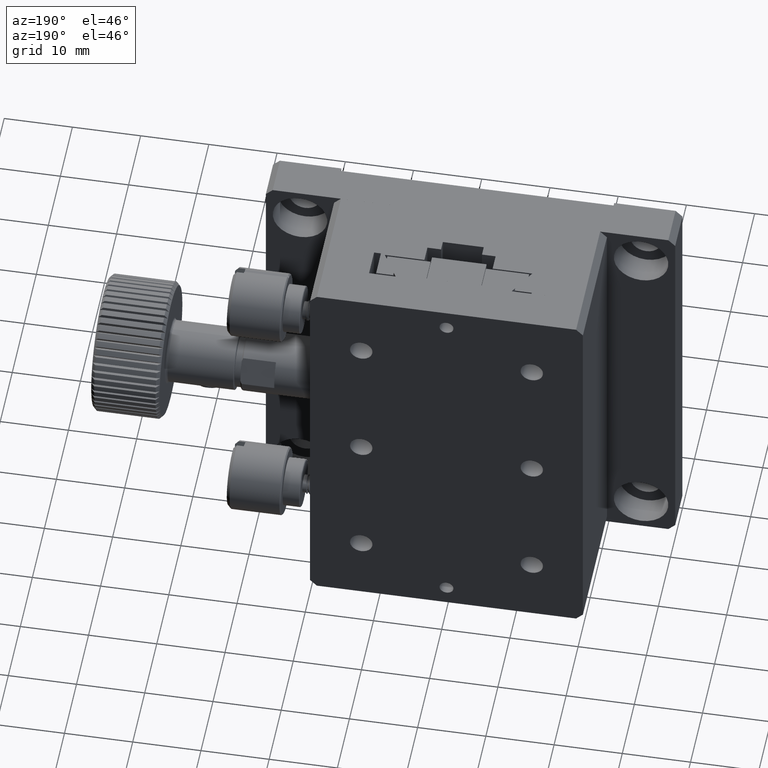
[diagram: clean part render]
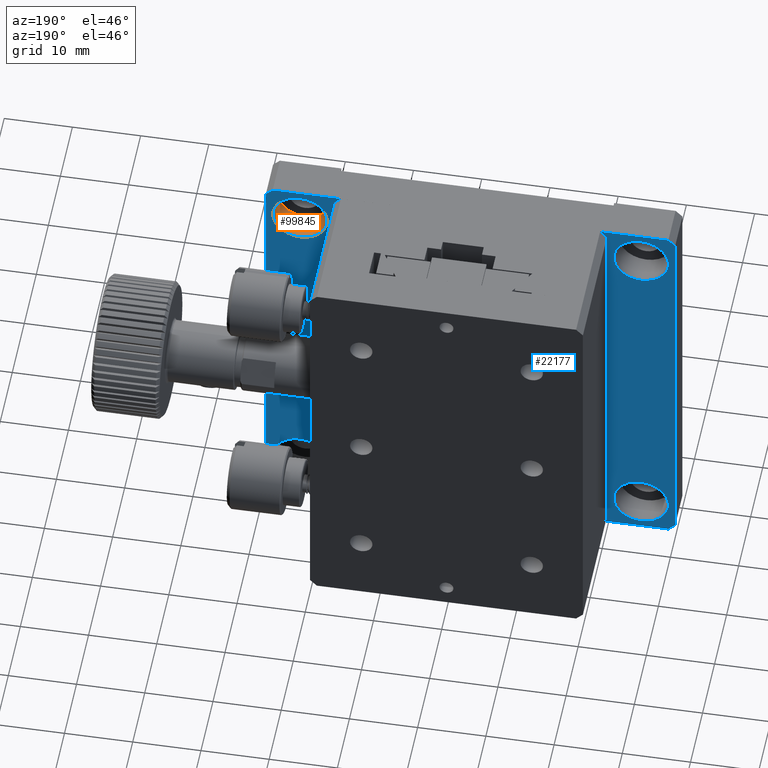
[diagram: same view with the hole feature highlighted: cylindrical wall and planar end face, labeled with their STEP entity ids]
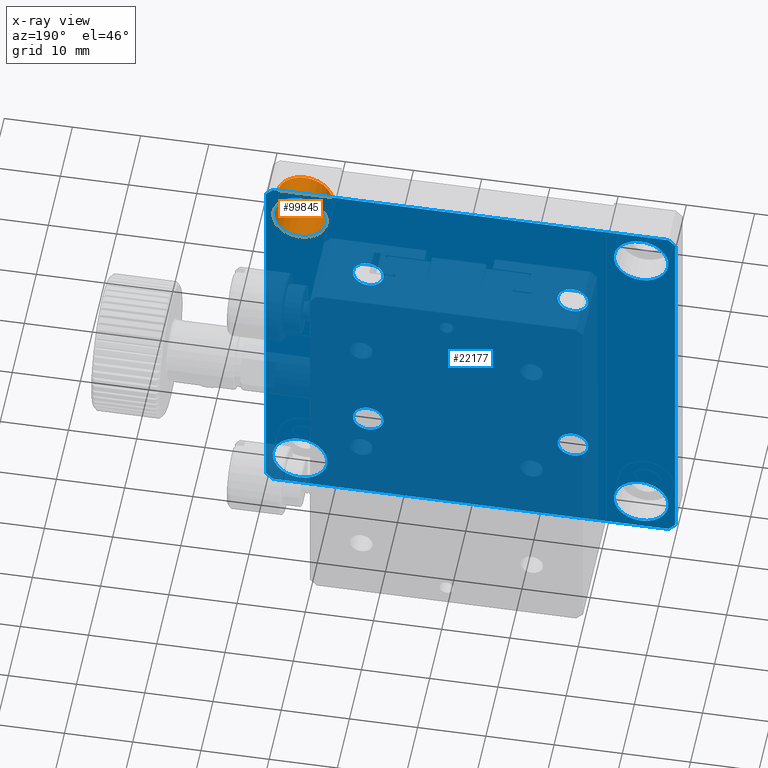
[diagram: x-ray of the same camera — body ghosted, the hole faces saturated]
A machine part, auxiliary view. The highlighted faces form one hole feature of diameter 8 mm: the cylindrical wall (entity #99845, orange) and its adjacent planar end face (entity #22177, blue) — they share a circular edge in the B-rep.
The next image is the same camera in x-ray (body ghosted, the hole faces saturated) — the bore reads through the body.
Wall:
#32258 = DIRECTION ( 'NONE',  ( 0.000000000000000000, 0.000000000000000000, 1.000000000000000000 ) ) ;
#32617 = ORIENTED_EDGE ( 'NONE', *, *, #74584, .F. ) ;
#34358 = EDGE_CURVE ( 'NONE', #66431, #66431, #43207, .T. ) ;
#36256 = CARTESIAN_POINT ( 'NONE',  ( 55.00000000000001421, 1.799999999999999600, 55.00000000000000000 ) ) ;
#43206 = EDGE_LOOP ( 'NONE', ( #32617 ) ) ;
#43207 = CIRCLE ( 'NONE', #76146, 3.999999999999996447 ) ;
#47425 = DIRECTION ( 'NONE',  ( 0.000000000000000000, 1.000000000000000000, 0.000000000000000000 ) ) ;
#49482 = AXIS2_PLACEMENT_3D ( 'NONE', #36256, #77545, #53628 ) ;
#53628 = DIRECTION ( 'NONE',  ( 0.000000000000000000, 0.000000000000000000, 1.000000000000000000 ) ) ;
#55557 = FACE_OUTER_BOUND ( 'NONE', #43206, .T. ) ;
#66431 = VERTEX_POINT ( 'NONE', #74050 ) ;
#68428 = ORIENTED_EDGE ( 'NONE', *, *, #34358, .F. ) ;
#70782 = CYLINDRICAL_SURFACE ( 'NONE', #71917, 3.999999999999996447 ) ;
#71917 = AXIS2_PLACEMENT_3D ( 'NONE', #97379, #47425, #103934 ) ;
#72941 = EDGE_LOOP ( 'NONE', ( #68428 ) ) ;
#74050 = CARTESIAN_POINT ( 'NONE',  ( 55.00000000000001421, 6.000000000000000000, 59.00000000000000000 ) ) ;
#74584 = EDGE_CURVE ( 'NONE', #78898, #78898, #94635, .T. ) ;
#76146 = AXIS2_PLACEMENT_3D ( 'NONE', #82235, #81708, #32258 ) ;
#77545 = DIRECTION ( 'NONE',  ( 0.000000000000000000, 1.000000000000000000, 0.000000000000000000 ) ) ;
#78898 = VERTEX_POINT ( 'NONE', #97846 ) ;
#80027 = FACE_OUTER_BOUND ( 'NONE', #72941, .T. ) ;
#81708 = DIRECTION ( 'NONE',  ( -0.000000000000000000, -1.000000000000000000, -0.000000000000000000 ) ) ;
#82235 = CARTESIAN_POINT ( 'NONE',  ( 55.00000000000001421, 6.000000000000000000, 55.00000000000000000 ) ) ;
#94635 = CIRCLE ( 'NONE', #49482, 3.999999999999996447 ) ;
#97379 = CARTESIAN_POINT ( 'NONE',  ( 55.00000000000001421, 6.000000000000000000, 55.00000000000000000 ) ) ;
#97846 = CARTESIAN_POINT ( 'NONE',  ( 55.00000000000001421, 1.799999999999999600, 59.00000000000000000 ) ) ;
#99845 = ADVANCED_FACE ( 'NONE', ( #80027, #55557 ), #70782, .F. ) ;
#103934 = DIRECTION ( 'NONE',  ( 0.000000000000000000, 0.000000000000000000, 1.000000000000000000 ) ) ;
End face:
#2115 = ORIENTED_EDGE ( 'NONE', *, *, #37994, .T. ) ;
#2660 = VERTEX_POINT ( 'NONE', #69084 ) ;
#3322 = VECTOR ( 'NONE', #48089, 1000.000000000000000 ) ;
#3747 = ORIENTED_EDGE ( 'NONE', *, *, #103238, .T. ) ;
#3773 = DIRECTION ( 'NONE',  ( 0.000000000000000000, 0.000000000000000000, 1.000000000000000000 ) ) ;
#5296 = DIRECTION ( 'NONE',  ( -1.000000000000000000, -0.000000000000000000, 0.000000000000000000 ) ) ;
#5937 = DIRECTION ( 'NONE',  ( 0.000000000000000000, -0.000000000000000000, 1.000000000000000000 ) ) ;
#5998 = CIRCLE ( 'NONE', #70194, 3.999999999999996447 ) ;
#6263 = CARTESIAN_POINT ( 'NONE',  ( 1.224646799147354440E-16, 6.000000000000000000, 0.000000000000000000 ) ) ;
#6311 = ORIENTED_EDGE ( 'NONE', *, *, #6734, .T. ) ;
#6421 = EDGE_LOOP ( 'NONE', ( #13107 ) ) ;
#6439 = CARTESIAN_POINT ( 'NONE',  ( 59.00000000000001421, 6.000000000000000000, 0.000000000000000000 ) ) ;
#6474 = FACE_BOUND ( 'NONE', #21942, .T. ) ;
#6635 = CARTESIAN_POINT ( 'NONE',  ( 45.00000000000001421, 6.000000000000000000, 44.99999999999998579 ) ) ;
#6734 = EDGE_CURVE ( 'NONE', #93970, #2660, #72780, .T. ) ;
#6774 = CARTESIAN_POINT ( 'NONE',  ( 45.00000000000001421, 6.000000000000000000, 14.99999999999998934 ) ) ;
#7400 = DIRECTION ( 'NONE',  ( 0.000000000000000000, 0.000000000000000000, -1.000000000000000000 ) ) ;
#7607 = ORIENTED_EDGE ( 'NONE', *, *, #24060, .T. ) ;
#8165 = EDGE_CURVE ( 'NONE', #18682, #32186, #19999, .T. ) ;
#8292 = CARTESIAN_POINT ( 'NONE',  ( 15.00000000000001066, 6.000000000000000000, 12.74999999999998757 ) ) ;
#9238 = CARTESIAN_POINT ( 'NONE',  ( 45.00000000000001421, 6.000000000000000000, 42.74999999999998579 ) ) ;
#11307 = CIRCLE ( 'NONE', #96325, 3.999999999999996447 ) ;
#13107 = ORIENTED_EDGE ( 'NONE', *, *, #75663, .T. ) ;
#13980 = LINE ( 'NONE', #55799, #96869 ) ;
#14426 = LINE ( 'NONE', #6263, #67636 ) ;
#16038 = EDGE_LOOP ( 'NONE', ( #20879 ) ) ;
#16103 = DIRECTION ( 'NONE',  ( -0.000000000000000000, -1.000000000000000000, -0.000000000000000000 ) ) ;
#16255 = DIRECTION ( 'NONE',  ( 1.000000000000000000, 0.000000000000000000, -0.000000000000000000 ) ) ;
#17134 = EDGE_LOOP ( 'NONE', ( #18884, #53078, #93713, #7607, #106095, #76465, #6311, #2115 ) ) ;
#17924 = EDGE_LOOP ( 'NONE', ( #66409 ) ) ;
#18468 = CARTESIAN_POINT ( 'NONE',  ( 5.000000000000009770, 6.000000000000000000, 55.00000000000000711 ) ) ;
#18682 = VERTEX_POINT ( 'NONE', #99530 ) ;
#18884 = ORIENTED_EDGE ( 'NONE', *, *, #70599, .T. ) ;
#19999 = LINE ( 'NONE', #78143, #56907 ) ;
#20574 = DIRECTION ( 'NONE',  ( -0.000000000000000000, -1.000000000000000000, -0.000000000000000000 ) ) ;
#20879 = ORIENTED_EDGE ( 'NONE', *, *, #26749, .T. ) ;
#20894 = EDGE_CURVE ( 'NONE', #50675, #50675, #51582, .T. ) ;
#21942 = EDGE_LOOP ( 'NONE', ( #104787 ) ) ;
#22177 = ADVANCED_FACE ( 'NONE', ( #58065, #89085, #47261, #6474, #65145, #32536, #40691, #65681, #72763 ), #105920, .T. ) ;
#23224 = AXIS2_PLACEMENT_3D ( 'NONE', #6635, #55021, #89253 ) ;
#24060 = EDGE_CURVE ( 'NONE', #32186, #75107, #13980, .T. ) ;
#25141 = VERTEX_POINT ( 'NONE', #8292 ) ;
#25546 = VERTEX_POINT ( 'NONE', #50013 ) ;
#26480 = ORIENTED_EDGE ( 'NONE', *, *, #41891, .T. ) ;
#26607 = DIRECTION ( 'NONE',  ( -0.000000000000000000, -1.000000000000000000, -0.000000000000000000 ) ) ;
#26749 = EDGE_CURVE ( 'NONE', #99558, #99558, #44929, .T. ) ;
#27366 = AXIS2_PLACEMENT_3D ( 'NONE', #95010, #20574, #78718 ) ;
#29973 = CARTESIAN_POINT ( 'NONE',  ( 55.00000000000001421, 6.000000000000000000, 8.999999999999996447 ) ) ;
#30568 = DIRECTION ( 'NONE',  ( -0.000000000000000000, -1.000000000000000000, -0.000000000000000000 ) ) ;
#31579 = VERTEX_POINT ( 'NONE', #29973 ) ;
#32004 = DIRECTION ( 'NONE',  ( 0.000000000000000000, 1.000000000000000000, 0.000000000000000000 ) ) ;
#32186 = VERTEX_POINT ( 'NONE', #80858 ) ;
#32258 = DIRECTION ( 'NONE',  ( 0.000000000000000000, 0.000000000000000000, 1.000000000000000000 ) ) ;
#32327 = DIRECTION ( 'NONE',  ( 0.000000000000000000, -0.000000000000000000, 1.000000000000000000 ) ) ;
#32536 = FACE_BOUND ( 'NONE', #6421, .T. ) ;
#34358 = EDGE_CURVE ( 'NONE', #66431, #66431, #43207, .T. ) ;
#36523 = VERTEX_POINT ( 'NONE', #70181 ) ;
#37473 = CARTESIAN_POINT ( 'NONE',  ( 55.00000000000001421, 6.000000000000000000, 4.999999999999999112 ) ) ;
#37977 = EDGE_LOOP ( 'NONE', ( #3747 ) ) ;
#37994 = EDGE_CURVE ( 'NONE', #2660, #42657, #71028, .T. ) ;
#38668 = EDGE_CURVE ( 'NONE', #25141, #25141, #39768, .T. ) ;
#39768 = CIRCLE ( 'NONE', #50255, 2.250000000000000444 ) ;
#40691 = FACE_BOUND ( 'NONE', #64187, .T. ) ;
#41456 = CARTESIAN_POINT ( 'NONE',  ( 15.00000000000001066, 6.000000000000000000, 42.74999999999999289 ) ) ;
#41891 = EDGE_CURVE ( 'NONE', #36523, #36523, #78086, .T. ) ;
#42657 = VERTEX_POINT ( 'NONE', #49288 ) ;
#43207 = CIRCLE ( 'NONE', #76146, 3.999999999999996447 ) ;
#44929 = CIRCLE ( 'NONE', #91743, 2.250000000000001776 ) ;
#45666 = CARTESIAN_POINT ( 'NONE',  ( 1.000000000000001110, 6.000000000000000000, 60.00000000000000000 ) ) ;
#46906 = CARTESIAN_POINT ( 'NONE',  ( 5.000000000000009770, 6.000000000000000000, 5.000000000000001776 ) ) ;
#47135 = CARTESIAN_POINT ( 'NONE',  ( 60.00000000000001421, 6.000000000000000000, 59.00000000000000711 ) ) ;
#47261 = FACE_BOUND ( 'NONE', #52142, .T. ) ;
#48089 = DIRECTION ( 'NONE',  ( -0.000000000000000000, 0.000000000000000000, -1.000000000000000000 ) ) ;
#49083 = CARTESIAN_POINT ( 'NONE',  ( 45.00000000000001421, 6.000000000000000000, 12.74999999999998757 ) ) ;
#49288 = CARTESIAN_POINT ( 'NONE',  ( 60.00000000000001421, 6.000000000000000000, 59.00000000000000711 ) ) ;
#50013 = CARTESIAN_POINT ( 'NONE',  ( 5.000000000000009770, 6.000000000000000000, 59.00000000000000711 ) ) ;
#50255 = AXIS2_PLACEMENT_3D ( 'NONE', #57397, #16103, #7400 ) ;
#50675 = VERTEX_POINT ( 'NONE', #41456 ) ;
#51582 = CIRCLE ( 'NONE', #27366, 2.250000000000001776 ) ;
#52142 = EDGE_LOOP ( 'NONE', ( #104796 ) ) ;
#52508 = CARTESIAN_POINT ( 'NONE',  ( 60.00000000000000711, 6.000000000000000000, 0.9999999999999826805 ) ) ;
#53078 = ORIENTED_EDGE ( 'NONE', *, *, #73913, .T. ) ;
#53580 = CARTESIAN_POINT ( 'NONE',  ( 1.068347150017460150E-14, 6.000000000000000000, 59.00000000000001421 ) ) ;
#54872 = LINE ( 'NONE', #45666, #78624 ) ;
#54968 = CARTESIAN_POINT ( 'NONE',  ( 1.342616492375311120E-16, 6.000000000000000000, 1.000000000000000888 ) ) ;
#55021 = DIRECTION ( 'NONE',  ( -0.000000000000000000, -1.000000000000000000, -0.000000000000000000 ) ) ;
#55022 = DIRECTION ( 'NONE',  ( 0.000000000000000000, 0.000000000000000000, 1.000000000000000000 ) ) ;
#55799 = CARTESIAN_POINT ( 'NONE',  ( 1.224646799147354440E-16, 6.000000000000000000, 1.000000000000000888 ) ) ;
#56907 = VECTOR ( 'NONE', #5296, 1000.000000000000000 ) ;
#57397 = CARTESIAN_POINT ( 'NONE',  ( 15.00000000000001066, 6.000000000000000000, 14.99999999999998757 ) ) ;
#57613 = VERTEX_POINT ( 'NONE', #53580 ) ;
#58065 = FACE_BOUND ( 'NONE', #17924, .T. ) ;
#58658 = EDGE_CURVE ( 'NONE', #75107, #57613, #14426, .T. ) ;
#59756 = DIRECTION ( 'NONE',  ( 0.000000000000000000, 0.000000000000000000, 1.000000000000000000 ) ) ;
#61381 = DIRECTION ( 'NONE',  ( -0.000000000000000000, -1.000000000000000000, -0.000000000000000000 ) ) ;
#62889 = DIRECTION ( 'NONE',  ( 0.7071067811865500152, -0.000000000000000000, -0.7071067811865451302 ) ) ;
#64187 = EDGE_LOOP ( 'NONE', ( #91156 ) ) ;
#65145 = FACE_OUTER_BOUND ( 'NONE', #17134, .T. ) ;
#65447 = CARTESIAN_POINT ( 'NONE',  ( 60.00000000000001421, 6.000000000000000000, 0.000000000000000000 ) ) ;
#65681 = FACE_BOUND ( 'NONE', #37977, .T. ) ;
#66409 = ORIENTED_EDGE ( 'NONE', *, *, #38668, .T. ) ;
#66431 = VERTEX_POINT ( 'NONE', #74050 ) ;
#67364 = VECTOR ( 'NONE', #16255, 1000.000000000000000 ) ;
#67636 = VECTOR ( 'NONE', #32327, 1000.000000000000000 ) ;
#69084 = CARTESIAN_POINT ( 'NONE',  ( 59.00000000000000711, 6.000000000000000000, 60.00000000000000000 ) ) ;
#70181 = CARTESIAN_POINT ( 'NONE',  ( 5.000000000000009770, 6.000000000000000000, 8.999999999999998224 ) ) ;
#70194 = AXIS2_PLACEMENT_3D ( 'NONE', #18468, #26607, #59756 ) ;
#70599 = EDGE_CURVE ( 'NONE', #42657, #105490, #89389, .T. ) ;
#71028 = LINE ( 'NONE', #47135, #97082 ) ;
#71992 = DIRECTION ( 'NONE',  ( 0.000000000000000000, 0.000000000000000000, -1.000000000000000000 ) ) ;
#72763 = FACE_BOUND ( 'NONE', #90232, .T. ) ;
#72780 = LINE ( 'NONE', #106459, #67364 ) ;
#73913 = EDGE_CURVE ( 'NONE', #105490, #18682, #105341, .T. ) ;
#74050 = CARTESIAN_POINT ( 'NONE',  ( 55.00000000000001421, 6.000000000000000000, 59.00000000000000000 ) ) ;
#74354 = CARTESIAN_POINT ( 'NONE',  ( 0.000000000000000000, 6.000000000000000000, 0.000000000000000000 ) ) ;
#75107 = VERTEX_POINT ( 'NONE', #54968 ) ;
#75663 = EDGE_CURVE ( 'NONE', #31579, #31579, #11307, .T. ) ;
#76146 = AXIS2_PLACEMENT_3D ( 'NONE', #82235, #81708, #32258 ) ;
#76465 = ORIENTED_EDGE ( 'NONE', *, *, #93952, .T. ) ;
#77699 = AXIS2_PLACEMENT_3D ( 'NONE', #74354, #32004, #5937 ) ;
#78086 = CIRCLE ( 'NONE', #105869, 3.999999999999995559 ) ;
#78143 = CARTESIAN_POINT ( 'NONE',  ( 0.000000000000000000, 6.000000000000000000, 0.000000000000000000 ) ) ;
#78624 = VECTOR ( 'NONE', #86959, 1000.000000000000114 ) ;
#78718 = DIRECTION ( 'NONE',  ( 0.000000000000000000, 0.000000000000000000, -1.000000000000000000 ) ) ;
#80858 = CARTESIAN_POINT ( 'NONE',  ( 1.000000000000007994, 6.000000000000000000, -1.355252715606880543E-16 ) ) ;
#81708 = DIRECTION ( 'NONE',  ( -0.000000000000000000, -1.000000000000000000, -0.000000000000000000 ) ) ;
#82235 = CARTESIAN_POINT ( 'NONE',  ( 55.00000000000001421, 6.000000000000000000, 55.00000000000000000 ) ) ;
#83685 = VERTEX_POINT ( 'NONE', #9238 ) ;
#86959 = DIRECTION ( 'NONE',  ( 0.7071067811865474617, -0.000000000000000000, 0.7071067811865474617 ) ) ;
#88962 = DIRECTION ( 'NONE',  ( -0.7071067811865500152, -0.000000000000000000, 0.7071067811865451302 ) ) ;
#89085 = FACE_BOUND ( 'NONE', #16038, .T. ) ;
#89253 = DIRECTION ( 'NONE',  ( 0.000000000000000000, 0.000000000000000000, -1.000000000000000000 ) ) ;
#89389 = LINE ( 'NONE', #65447, #3322 ) ;
#89580 = DIRECTION ( 'NONE',  ( -0.7071067811865500152, -0.000000000000000000, -0.7071067811865450192 ) ) ;
#89927 = DIRECTION ( 'NONE',  ( -0.000000000000000000, -1.000000000000000000, -0.000000000000000000 ) ) ;
#90232 = EDGE_LOOP ( 'NONE', ( #26480 ) ) ;
#91156 = ORIENTED_EDGE ( 'NONE', *, *, #34358, .T. ) ;
#91743 = AXIS2_PLACEMENT_3D ( 'NONE', #6774, #89927, #71992 ) ;
#92649 = CIRCLE ( 'NONE', #23224, 2.250000000000001776 ) ;
#93713 = ORIENTED_EDGE ( 'NONE', *, *, #8165, .T. ) ;
#93952 = EDGE_CURVE ( 'NONE', #57613, #93970, #54872, .T. ) ;
#93970 = VERTEX_POINT ( 'NONE', #95637 ) ;
#94544 = VECTOR ( 'NONE', #89580, 1000.000000000000000 ) ;
#95010 = CARTESIAN_POINT ( 'NONE',  ( 15.00000000000001066, 6.000000000000000000, 44.99999999999999289 ) ) ;
#95637 = CARTESIAN_POINT ( 'NONE',  ( 1.000000000000001332, 6.000000000000000000, 60.00000000000000000 ) ) ;
#96325 = AXIS2_PLACEMENT_3D ( 'NONE', #37473, #61381, #3773 ) ;
#96869 = VECTOR ( 'NONE', #88962, 1000.000000000000114 ) ;
#97082 = VECTOR ( 'NONE', #62889, 1000.000000000000114 ) ;
#97228 = EDGE_CURVE ( 'NONE', #83685, #83685, #92649, .T. ) ;
#99530 = CARTESIAN_POINT ( 'NONE',  ( 59.00000000000001421, 6.000000000000000000, -1.328147661294742932E-15 ) ) ;
#99558 = VERTEX_POINT ( 'NONE', #49083 ) ;
#103238 = EDGE_CURVE ( 'NONE', #25546, #25546, #5998, .T. ) ;
#104787 = ORIENTED_EDGE ( 'NONE', *, *, #20894, .T. ) ;
#104796 = ORIENTED_EDGE ( 'NONE', *, *, #97228, .T. ) ;
#105341 = LINE ( 'NONE', #6439, #94544 ) ;
#105490 = VERTEX_POINT ( 'NONE', #52508 ) ;
#105869 = AXIS2_PLACEMENT_3D ( 'NONE', #46906, #30568, #55022 ) ;
#105920 = PLANE ( 'NONE',  #77699 ) ;
#106095 = ORIENTED_EDGE ( 'NONE', *, *, #58658, .T. ) ;
#106459 = CARTESIAN_POINT ( 'NONE',  ( 0.000000000000000000, 6.000000000000000000, 60.00000000000000000 ) ) ;